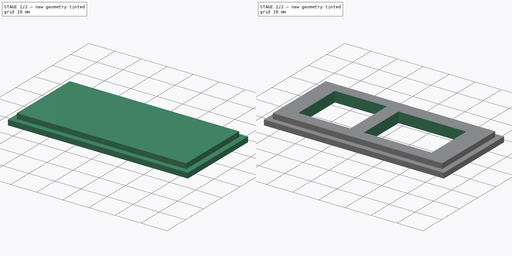
[diagram: build sequence overview — one tinted view per stage of 2, left to right]
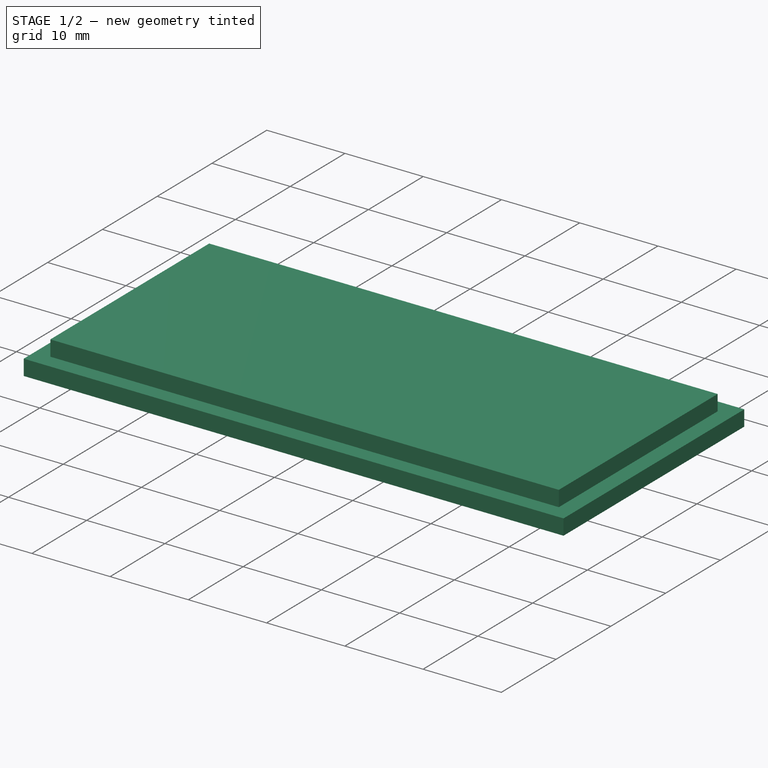
[diagram: stage 1 of 2 — iso view after this stage's code; geometry added in this stage tinted green]
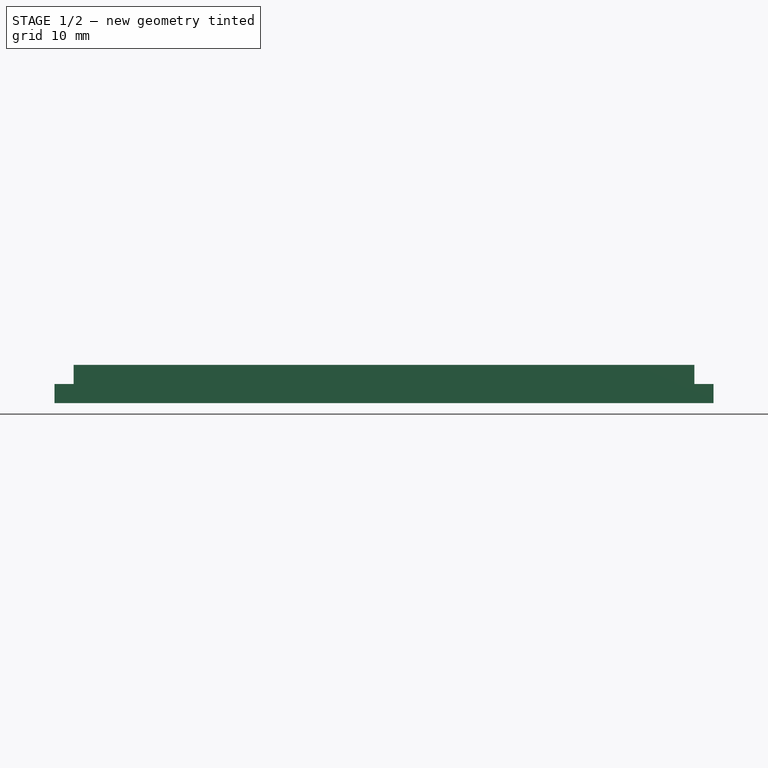
[diagram: stage 1 of 2 — front view after this stage's code; geometry added in this stage tinted green]
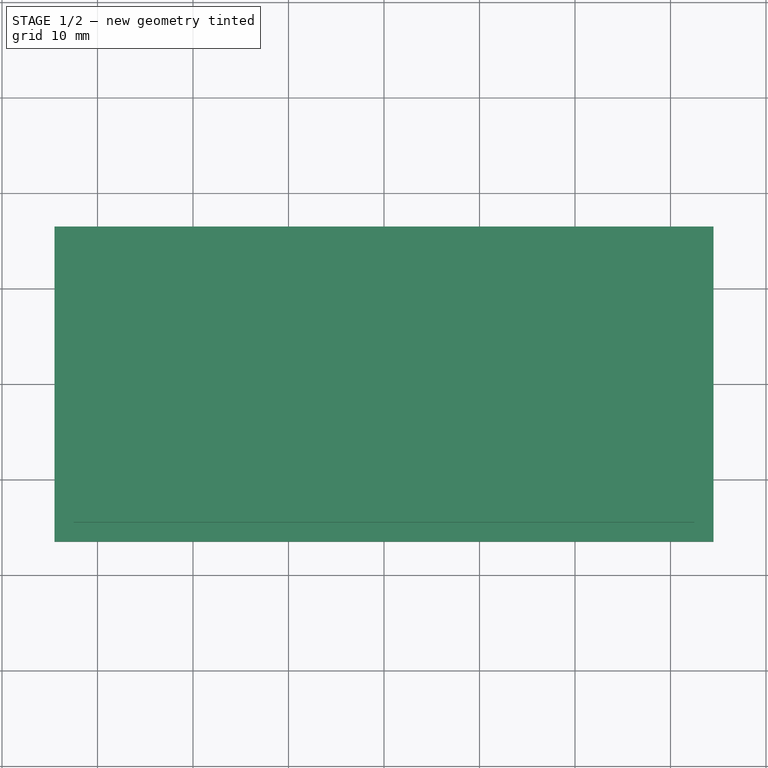
[diagram: stage 1 of 2 — top view after this stage's code; geometry added in this stage tinted green]
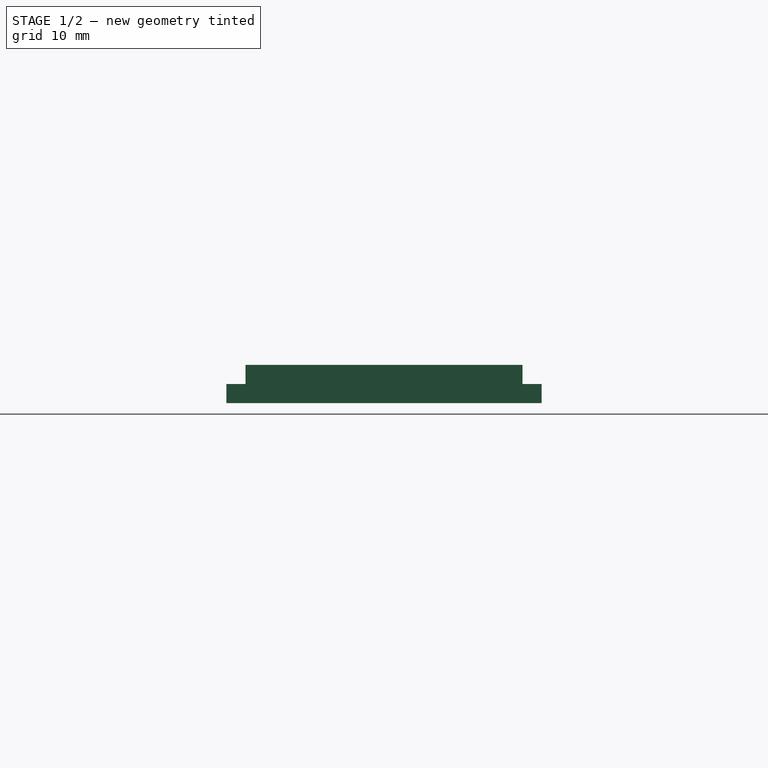
[diagram: stage 1 of 2 — right view after this stage's code; geometry added in this stage tinted green]
FCSTD DOCUMENT  (FreeCAD 0.19R24291 (Git))
Label: esp32
License: All rights reserved
LicenseURL: http://en.wikipedia.org/wiki/All_rights_reserved
objects: Sketcher::SketchObject×4, PartDesign::Pad×2, PartDesign::Pocket×1, PartDesign::Body×1
note: 11 computed .brp shape members not serialized (recipe doc carries the construction recipe); baked Part::Feature solids carry a one-line shape summary decoded from their .brp

FEATURE [Sketcher::SketchObject] Sketch
  FullyConstrained = true
  MapMode = 5
  Support = -> [XY_Plane001]
  sketch-geometry (4):
    g0: LineSegment StartX=-32.5 StartY=14.5 StartZ=0 EndX=32.5 EndY=14.5 EndZ=0
    g1: LineSegment StartX=32.5 StartY=14.5 StartZ=0 EndX=32.5 EndY=-14.5 EndZ=0
    g2: LineSegment StartX=32.5 StartY=-14.5 StartZ=0 EndX=-32.5 EndY=-14.5 EndZ=0
    g3: LineSegment StartX=-32.5 StartY=-14.5 StartZ=0 EndX=-32.5 EndY=14.5 EndZ=0
  constraints (10):
    c: Coincident(g0,g1)
    c: Coincident(g1,g2)
    c: Coincident(g2,g3)
    c: Coincident(g3,g0)
    c: Horizontal(g2)
    c: Vertical(g1)
    c: Symmetric(g0,g0,g-2)
    c: Symmetric(g0,g2,g-1)
    c: Distance(g2) = 65
    c: Distance(g1) = 29
FEATURE [PartDesign::Pad] Pad
  Direction = (1,1,1)
  Length = 2
  Length2 = 100
  Profile = -> Sketch
  Type = 0
FEATURE [Sketcher::SketchObject] Sketch001
  FullyConstrained = true
  MapMode = 5
  Placement = pos=(0,0,2) rot=(0,0,1;0rad)
  Support = -> [Pad]
FEATURE [Sketcher::SketchObject] Sketch002
  ExternalGeometry = -> [Pad]
  FullyConstrained = true
  MapMode = 5
  Placement = pos=(0,0,0) rot=(1,0,0;3.14159rad)
  Support = -> [Pad]
  sketch-geometry (4):
    g0: LineSegment StartX=-34.5 StartY=16.5 StartZ=0 EndX=34.5 EndY=16.5 EndZ=0
    g1: LineSegment StartX=34.5 StartY=16.5 StartZ=0 EndX=34.5 EndY=-16.5 EndZ=0
    g2: LineSegment StartX=34.5 StartY=-16.5 StartZ=0 EndX=-34.5 EndY=-16.5 EndZ=0
    g3: LineSegment StartX=-34.5 StartY=-16.5 StartZ=0 EndX=-34.5 EndY=16.5 EndZ=0
  constraints (10):
    c: Coincident(g0,g1)
    c: Coincident(g1,g2)
    c: Coincident(g2,g3)
    c: Coincident(g3,g0)
    c: Horizontal(g2)
    c: Vertical(g1)
    c: Symmetric(g0,g0,g-2)
    c: Symmetric(g0,g2,g-1)
    c: Distance(g-3,g3) = 2
    c: Distance(g-3,g0) = 2
FEATURE [PartDesign::Pad] Pad001
  BaseFeature = -> Pad
  Direction = (1,1,1)
  Length = 2
  Length2 = 100
  Profile = -> Sketch002
  Type = 0
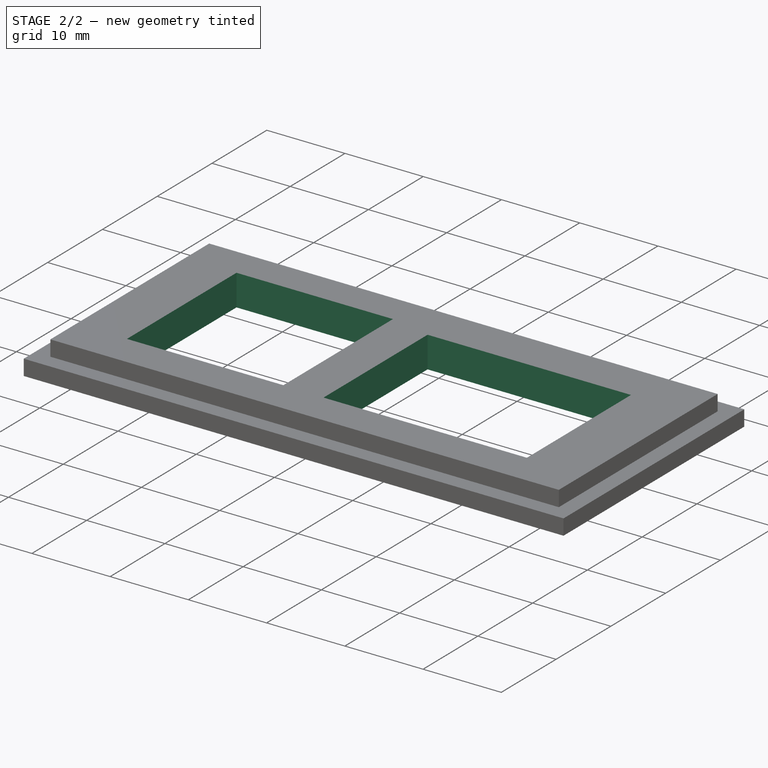
[diagram: stage 2 of 2 — iso view after this stage's code; geometry added in this stage tinted green]
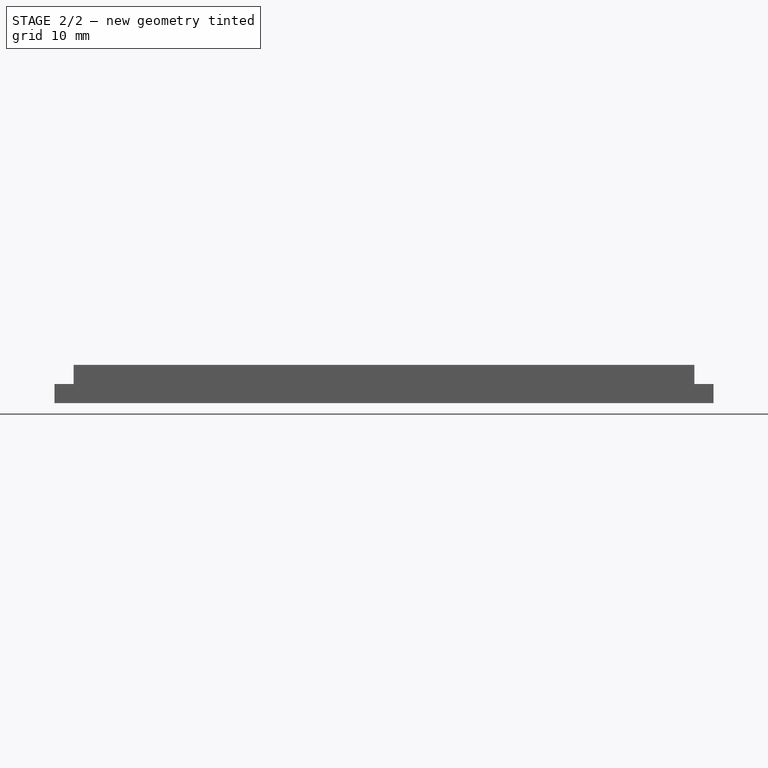
[diagram: stage 2 of 2 — front view after this stage's code; geometry added in this stage tinted green]
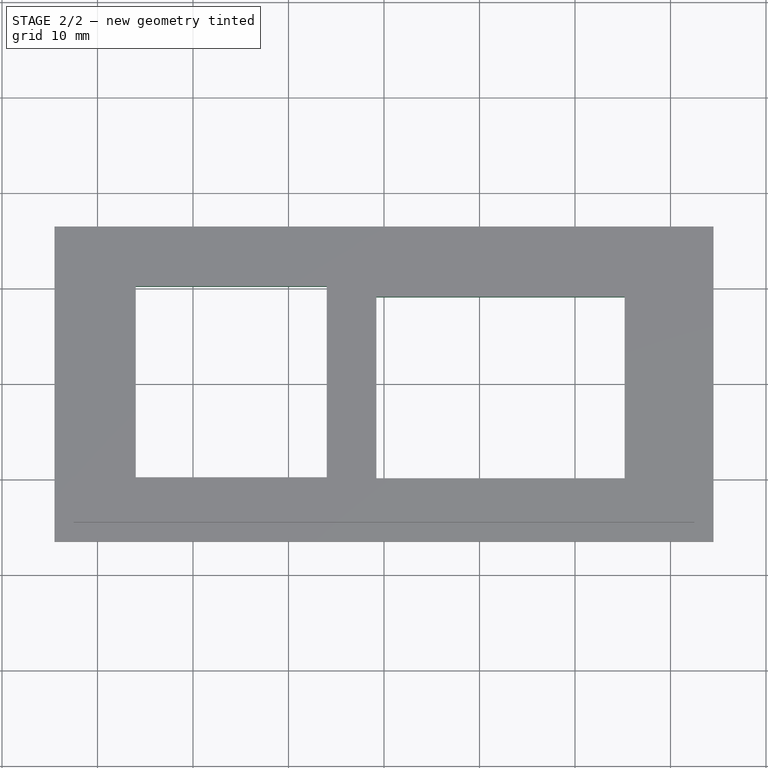
[diagram: stage 2 of 2 — top view after this stage's code; geometry added in this stage tinted green]
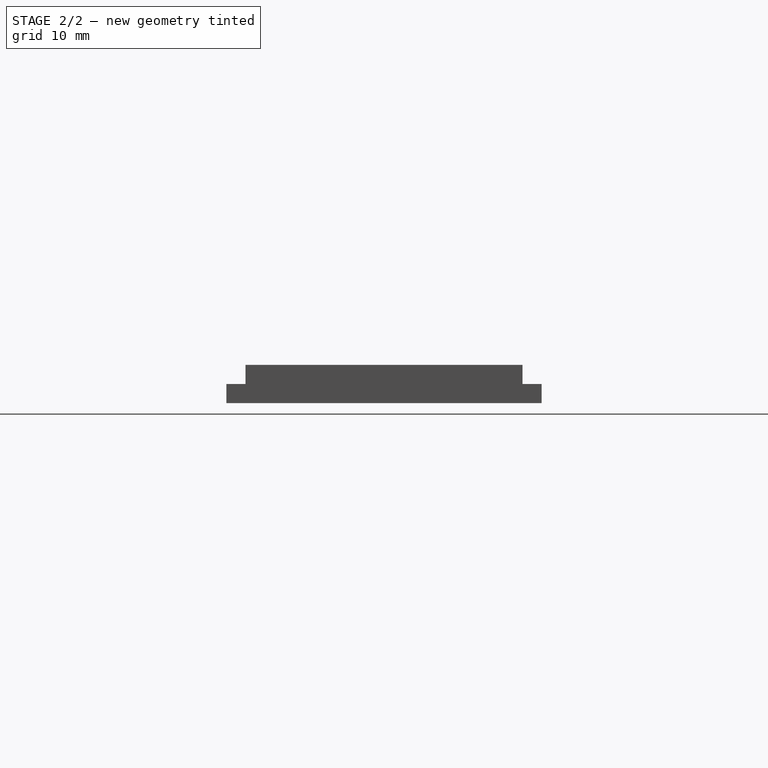
[diagram: stage 2 of 2 — right view after this stage's code; geometry added in this stage tinted green]
FEATURE [Sketcher::SketchObject] Sketch003
  ExternalGeometry = -> [Pad001]
  FullyConstrained = true
  MapMode = 5
  Placement = pos=(0,0,2) rot=(0,0,1;0rad)
  Support = -> [Pad001]
  sketch-geometry (8):
    g0: LineSegment StartX=-26 StartY=10.2 StartZ=0 EndX=-6 EndY=10.2 EndZ=0
    g1: LineSegment StartX=-6 StartY=10.2 StartZ=0 EndX=-6 EndY=-9.8 EndZ=0
    g2: LineSegment StartX=-6 StartY=-9.8 StartZ=0 EndX=-26 EndY=-9.8 EndZ=0
    g3: LineSegment StartX=-26 StartY=-9.8 StartZ=0 EndX=-26 EndY=10.2 EndZ=0
    g4: LineSegment StartX=-0.8 StartY=9.1 StartZ=0 EndX=25.2 EndY=9.1 EndZ=0
    g5: LineSegment StartX=25.2 StartY=9.1 StartZ=0 EndX=25.2 EndY=-9.9 EndZ=0
    g6: LineSegment StartX=25.2 StartY=-9.9 StartZ=0 EndX=-0.8 EndY=-9.9 EndZ=0
    g7: LineSegment StartX=-0.8 StartY=-9.9 StartZ=0 EndX=-0.8 EndY=9.1 EndZ=0
  constraints (24):
    c: Coincident(g0,g1)
    c: Coincident(g1,g2)
    c: Coincident(g2,g3)
    c: Coincident(g3,g0)
    c: Horizontal(g0)
    c: Horizontal(g2)
    c: Vertical(g1)
    c: Vertical(g3)
    c: Distance(g1) = 20
    c: Distance(g0) = 20
    c: DistanceX(g-3,g0) = 6.5
    c: DistanceY(g0,g-3) = 4.3
    c: Coincident(g4,g5)
    c: Coincident(g5,g6)
    c: Coincident(g6,g7)
    c: Coincident(g7,g4)
    c: Horizontal(g4)
    c: Horizontal(g6)
    c: Vertical(g5)
    c: Vertical(g7)
    c: Distance(g6) = 26
    c: Distance(g5) = 19
    c: DistanceY(g4,g-4) = 5.4
    c: DistanceX(g4,g-4) = 7.3
FEATURE [PartDesign::Pocket] Pocket
  BaseFeature = -> Pad001
  Length = 5
  Length2 = 100
  Profile = -> Sketch003
  Type = 1
FEATURE [PartDesign::Body] Body001  label="lid"
  Group = -> [Sketch,Pad,Sketch001,Sketch002,Pad001,Sketch003,Pocket]
  Origin = -> Origin001
  Tip = -> Pocket
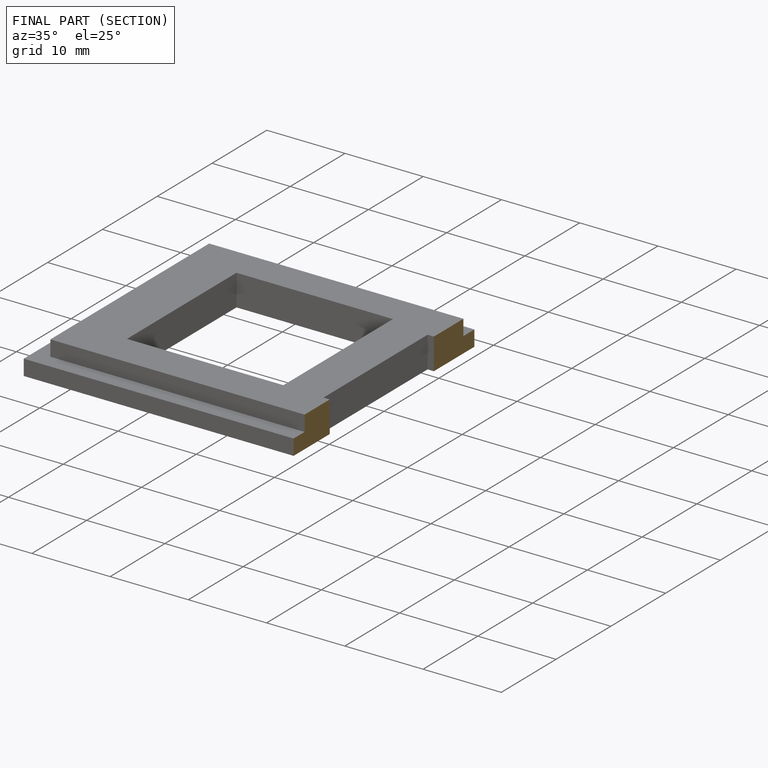
[diagram: finished part — half-section view (interior)]
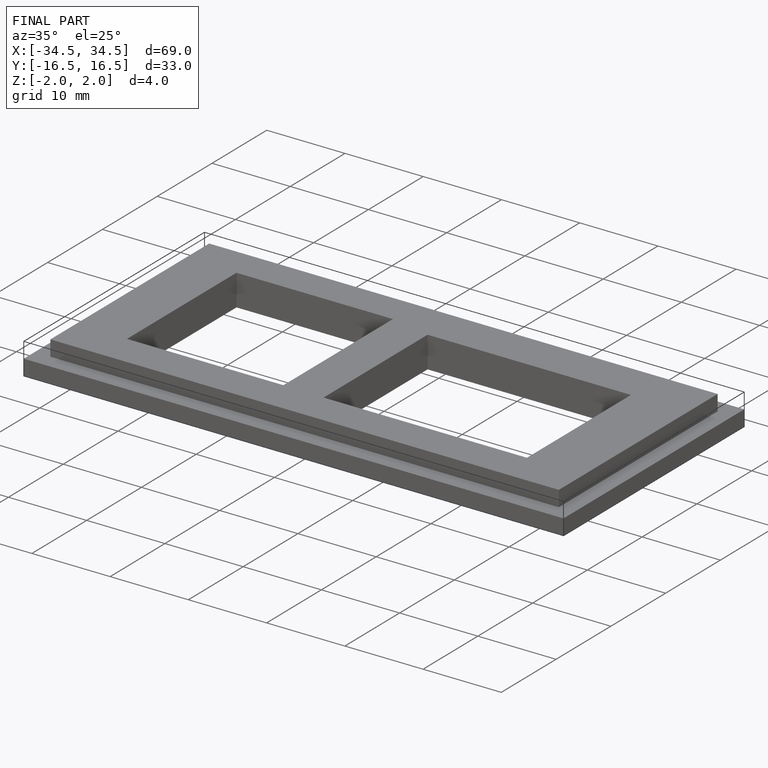
[diagram: finished part — iso view with bounding-box wireframe]
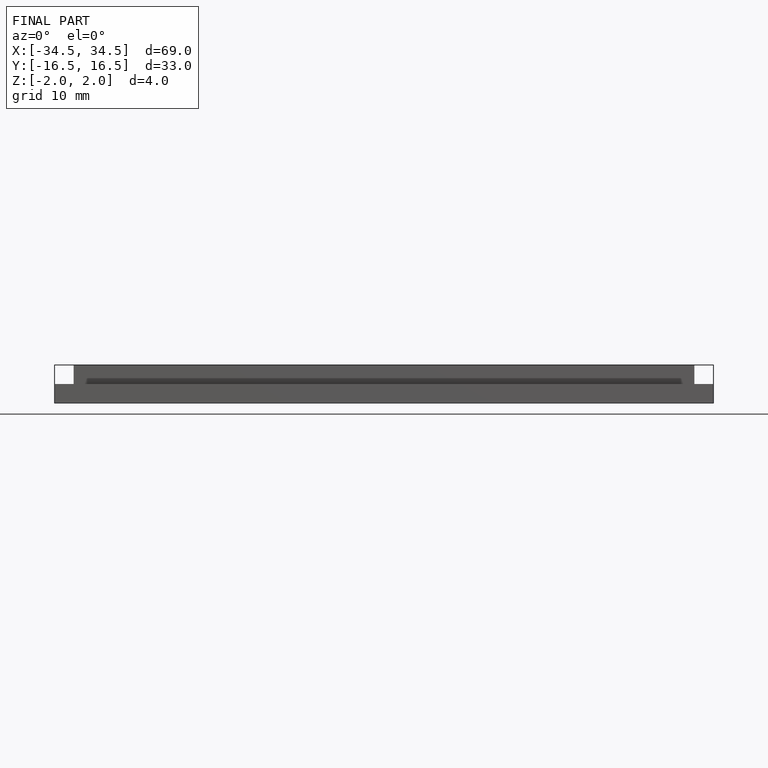
[diagram: finished part — front view with bounding-box wireframe]
